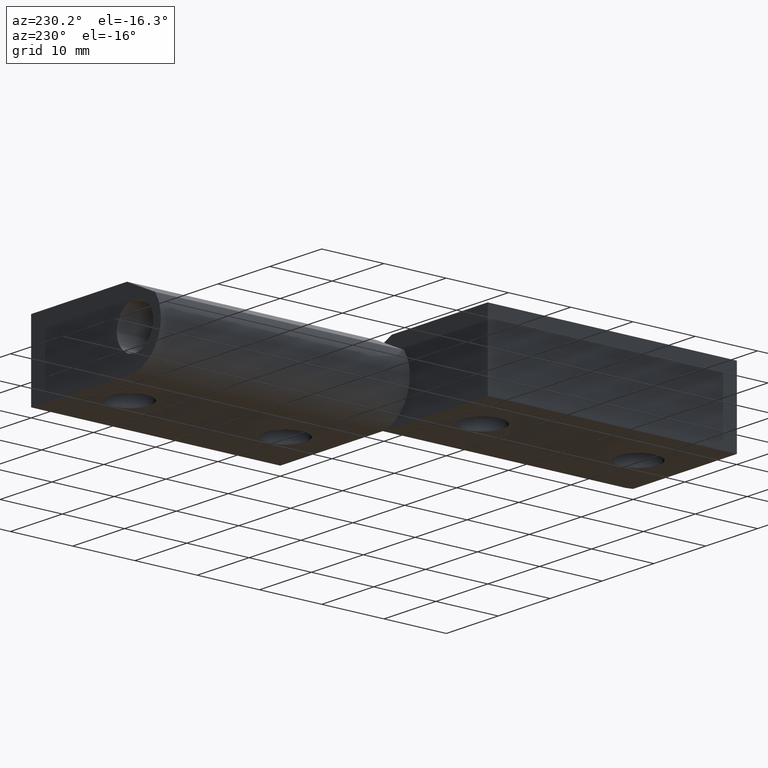
[diagram: clean part render]
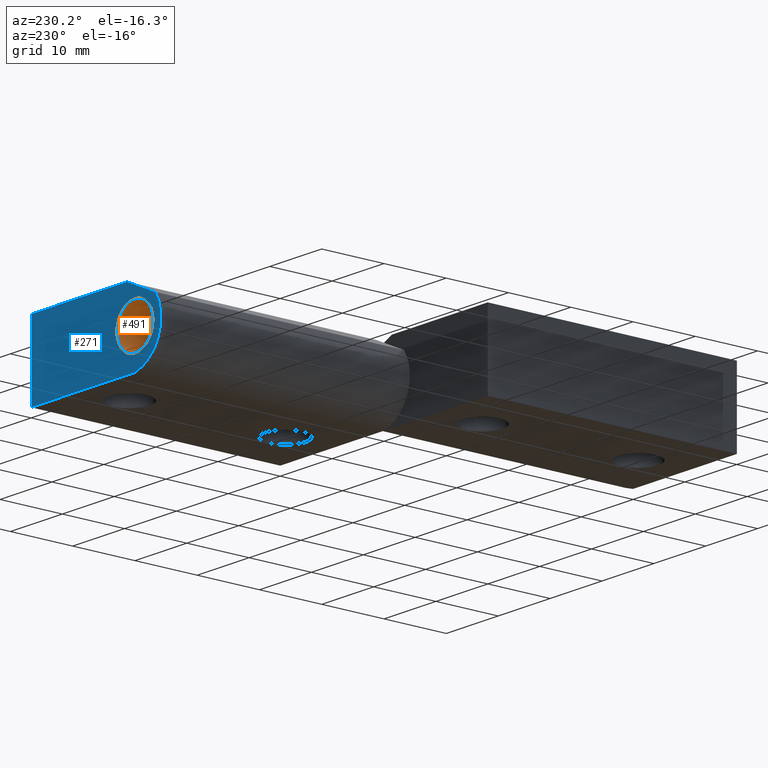
[diagram: same view with the hole feature highlighted: cylindrical wall and planar end face, labeled with their STEP entity ids]
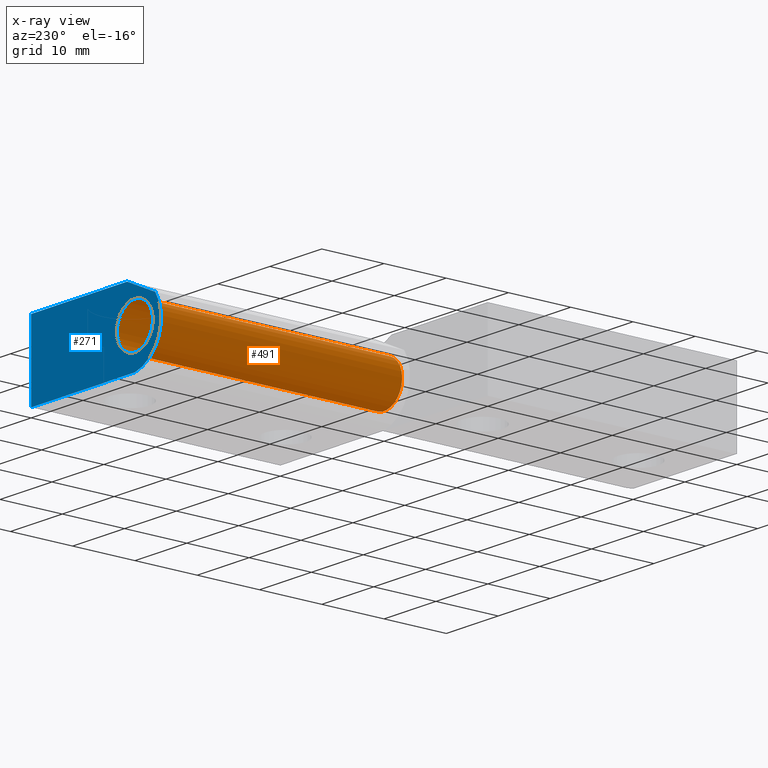
[diagram: x-ray of the same camera — body ghosted, the hole faces saturated]
A machine part, auxiliary view. The highlighted faces form one hole feature of diameter 7 mm: the cylindrical wall (entity #491, orange) and its adjacent planar end face (entity #271, blue) — they share a circular edge in the B-rep.
The next image is the same camera in x-ray (body ghosted, the hole faces saturated) — the bore reads through the body.
Wall:
#251=CARTESIAN_POINT('',(-3.499992999985807,80.0,4.898587E-015));
#252=VERTEX_POINT('',#251);
#253=CARTESIAN_POINT('',(3.499992999985807,80.0,4.898587E-015));
#254=VERTEX_POINT('',#253);
#255=CARTESIAN_POINT('',(0.0,80.0,4.898587E-015));
#256=DIRECTION('',(0.0,1.0,6.123234E-017));
#257=DIRECTION('',(1.0,0.0,0.0));
#258=AXIS2_PLACEMENT_3D('',#255,#256,#257);
#259=CIRCLE('',#258,3.499992999985807);
#260=EDGE_CURVE('',#252,#254,#259,.T.);
#262=CARTESIAN_POINT('',(0.0,80.0,4.898587E-015));
#263=DIRECTION('',(0.0,1.0,6.123234E-017));
#264=DIRECTION('',(1.0,0.0,0.0));
#265=AXIS2_PLACEMENT_3D('',#262,#263,#264);
#266=CIRCLE('',#265,3.499992999985807);
#267=EDGE_CURVE('',#254,#252,#266,.T.);
#284=CARTESIAN_POINT('',(3.499992999985807,40.0,2.449294E-015));
#285=VERTEX_POINT('',#284);
#286=CARTESIAN_POINT('',(-3.499992999985807,40.0,2.449294E-015));
#287=VERTEX_POINT('',#286);
#288=CARTESIAN_POINT('',(0.0,40.0,2.449294E-015));
#289=DIRECTION('',(0.0,1.0,6.123234E-017));
#290=DIRECTION('',(1.0,0.0,0.0));
#291=AXIS2_PLACEMENT_3D('',#288,#289,#290);
#292=CIRCLE('',#291,3.499992999985807);
#293=EDGE_CURVE('',#285,#287,#292,.T.);
#295=CARTESIAN_POINT('',(0.0,40.0,2.449294E-015));
#296=DIRECTION('',(0.0,1.0,6.123234E-017));
#297=DIRECTION('',(1.0,0.0,0.0));
#298=AXIS2_PLACEMENT_3D('',#295,#296,#297);
#299=CIRCLE('',#298,3.499992999985807);
#300=EDGE_CURVE('',#287,#285,#299,.T.);
#473=CARTESIAN_POINT('',(0.0,80.0,4.898587E-015));
#474=DIRECTION('',(0.0,1.0,6.123234E-017));
#475=DIRECTION('',(1.0,0.0,0.0));
#476=AXIS2_PLACEMENT_3D('',#473,#474,#475);
#477=CYLINDRICAL_SURFACE('',#476,3.499992999985807);
#478=CARTESIAN_POINT('',(3.499992999985807,80.0,4.898587E-015));
#479=DIRECTION('',(0.0,-1.0,0.0));
#480=VECTOR('',#479,40.0);
#481=LINE('',#478,#480);
#482=EDGE_CURVE('',#254,#285,#481,.T.);
#483=ORIENTED_EDGE('',*,*,#482,.T.);
#484=ORIENTED_EDGE('',*,*,#300,.F.);
#485=ORIENTED_EDGE('',*,*,#293,.F.);
#486=ORIENTED_EDGE('',*,*,#482,.F.);
#487=ORIENTED_EDGE('',*,*,#267,.T.);
#488=ORIENTED_EDGE('',*,*,#260,.T.);
#489=EDGE_LOOP('',(#483,#484,#485,#486,#487,#488));
#490=FACE_OUTER_BOUND('',#489,.T.);
#491=ADVANCED_FACE('',(#490),#477,.F.);
End face:
#7=CARTESIAN_POINT('',(19.999959999920065,80.0,-5.999987999976378));
#8=VERTEX_POINT('',#7);
#25=CARTESIAN_POINT('',(0.000002618212875,80.0,-5.999987999976378));
#26=VERTEX_POINT('',#25);
#33=CARTESIAN_POINT('',(19.999959999920065,80.0,-5.999987999976378));
#34=DIRECTION('',(-1.0,0.0,0.0));
#35=VECTOR('',#34,19.999957381707191);
#36=LINE('',#33,#35);
#37=EDGE_CURVE('',#8,#26,#36,.T.);
#97=CARTESIAN_POINT('',(-3.912713944059760,80.0,3.475999443448932));
#98=VERTEX_POINT('',#97);
#105=CARTESIAN_POINT('',(1.099998098277865,80.0,0.000000427091441));
#106=DIRECTION('',(0.0,1.0,6.123234E-017));
#107=DIRECTION('',(-0.180327488483690,6.022854E-017,-0.983606627111248));
#108=AXIS2_PLACEMENT_3D('',#105,#106,#107);
#109=CIRCLE('',#108,6.099987801718248);
#110=EDGE_CURVE('',#26,#98,#109,.T.);
#129=CARTESIAN_POINT('',(1.499996999993982,80.0,5.999987999975934));
#130=VERTEX_POINT('',#129);
#137=CARTESIAN_POINT('',(-3.912713944059760,80.0,3.475999443448932));
#138=DIRECTION('',(0.906307787553863,0.0,0.422618260631533));
#139=VECTOR('',#138,5.972265733987262);
#140=LINE('',#137,#139);
#141=EDGE_CURVE('',#98,#130,#140,.T.);
#160=CARTESIAN_POINT('',(19.999959999920065,80.0,5.999987999975934));
#161=VERTEX_POINT('',#160);
#168=CARTESIAN_POINT('',(1.499996999993982,80.0,5.999987999975934));
#169=DIRECTION('',(1.0,0.0,0.0));
#170=VECTOR('',#169,18.499962999926083);
#171=LINE('',#168,#170);
#172=EDGE_CURVE('',#130,#161,#171,.T.);
#230=CARTESIAN_POINT('',(19.999959999920065,80.0,5.999987999975934));
#231=DIRECTION('',(0.0,0.0,-1.0));
#232=VECTOR('',#231,11.999975999952312);
#233=LINE('',#230,#232);
#234=EDGE_CURVE('',#161,#8,#233,.T.);
#239=CARTESIAN_POINT('',(-7.499989406390796,80.0,7.199990332646399));
#240=DIRECTION('',(0.0,1.0,0.0));
#241=DIRECTION('',(1.0,0.0,0.0));
#242=AXIS2_PLACEMENT_3D('',#239,#240,#241);
#243=PLANE('',#242);
#244=ORIENTED_EDGE('',*,*,#37,.T.);
#245=ORIENTED_EDGE('',*,*,#110,.T.);
#246=ORIENTED_EDGE('',*,*,#141,.T.);
#247=ORIENTED_EDGE('',*,*,#172,.T.);
#248=ORIENTED_EDGE('',*,*,#234,.T.);
#249=EDGE_LOOP('',(#244,#245,#246,#247,#248));
#250=FACE_OUTER_BOUND('',#249,.T.);
#251=CARTESIAN_POINT('',(-3.499992999985807,80.0,4.898587E-015));
#252=VERTEX_POINT('',#251);
#253=CARTESIAN_POINT('',(3.499992999985807,80.0,4.898587E-015));
#254=VERTEX_POINT('',#253);
#255=CARTESIAN_POINT('',(0.0,80.0,4.898587E-015));
#256=DIRECTION('',(0.0,1.0,6.123234E-017));
#257=DIRECTION('',(1.0,0.0,0.0));
#258=AXIS2_PLACEMENT_3D('',#255,#256,#257);
#259=CIRCLE('',#258,3.499992999985807);
#260=EDGE_CURVE('',#252,#254,#259,.T.);
#261=ORIENTED_EDGE('',*,*,#260,.F.);
#262=CARTESIAN_POINT('',(0.0,80.0,4.898587E-015));
#263=DIRECTION('',(0.0,1.0,6.123234E-017));
#264=DIRECTION('',(1.0,0.0,0.0));
#265=AXIS2_PLACEMENT_3D('',#262,#263,#264);
#266=CIRCLE('',#265,3.499992999985807);
#267=EDGE_CURVE('',#254,#252,#266,.T.);
#268=ORIENTED_EDGE('',*,*,#267,.F.);
#269=EDGE_LOOP('',(#261,#268));
#270=FACE_BOUND('',#269,.T.);
#271=ADVANCED_FACE('',(#250,#270),#243,.T.);